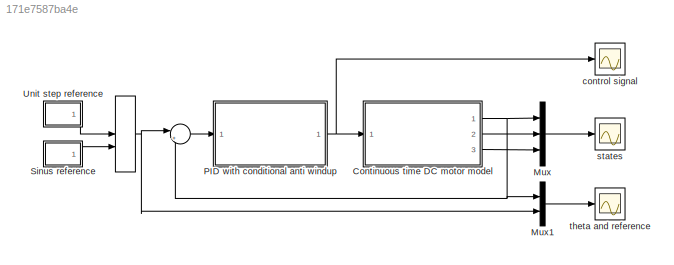
MODEL slx_171e7587ba4e
KIND model
CONFIG AbsTol = auto
CONFIG FixedStep = auto
CONFIG MaxStep = 1e-2
CONFIG MinStep = auto
CONFIG RelTol = 1e-3
CONFIG SampleTimeConstraint = Unconstrained
CONFIG Solver = VariableStepAuto
CONFIG SolverMode = Auto
CONFIG SolverName = VariableStepAuto
CONFIG StartTime = 0.0
CONFIG StopTime = 10
BLOCK [Sum]  
  IconShape = round
  InputSameDT = off
  Inputs = |+-
  OutDataTypeStr = Inherit: Inherit via internal rule
  Ports = [2, 1]
  SaturateOnIntegerOverflow = off
BLOCK [ManualSwitch]    
BLOCK [ModelReference] Continuous time DC motor model
  CopyOfModelName = DC_motor_c.slx
  ModelNameDialog = DC_motor_c.slx
  ModelReferenceVersion = 1.7
  Ports = [1, 3]
  Variant = off
BLOCK [Mux] Mux
  DisplayOption = bar
  Inputs = 3
  Ports = [3, 1]
BLOCK [Mux] Mux1
  DisplayOption = bar
  Inputs = 2
  Ports = [2, 1]
BLOCK [ModelReference] PID with conditional anti windup
  CopyOfModelName = PID_AW_c.slx
  ModelNameDialog = PID_AW_c.slx
  ModelReferenceVersion = 1.4
  Ports = [1, 1]
  Variant = off
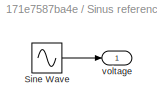
BLOCK [SubSystem] Sinus reference
  Ports = [0, 1]
  RequestExecContextInheritance = off
  Variant = off
BLOCK [Sin] Sinus reference/Sine Wave
  Frequency = 2*pi/10
  Ports = [0, 1]
  SampleTime = 0
BLOCK [Outport] Sinus reference/voltage
  IconDisplay = Port number
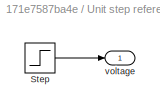
BLOCK [SubSystem] Unit step reference
  Ports = [0, 1]
  RequestExecContextInheritance = off
  Variant = off
BLOCK [Step] Unit step reference/Step
  SampleTime = 0
  Time = 0
BLOCK [Outport] Unit step reference/voltage
  IconDisplay = Port number
BLOCK [Scope] control signal
  Ports = [1]
  ScopeSpecificationString = Simulink.scopes.TimeScopeBlockCfg('CurrentConfiguration', extmgr.ConfigurationSet(extmgr.Configuration('Core','General UI',true),extmgr.Configuration('Core','Source UI',true),extmgr.Configuration('Sources','WiredSimulink',true,'DataLoggingLimitDataPoints',true,'DataLoggingSaveFormat','Array','DataLoggingDecimation','1','DataLoggingDecimateData',true,'DataLoggingVariableName','ScopeData1'),extmgr.C...<+1522ch>
BLOCK [Scope] states
  Ports = [1]
  ScopeSpecificationString = Simulink.scopes.TimeScopeBlockCfg('CurrentConfiguration', extmgr.ConfigurationSet(extmgr.Configuration('Core','General UI',true),extmgr.Configuration('Core','Source UI',true),extmgr.Configuration('Sources','WiredSimulink',true,'DataLoggingLimitDataPoints',true,'DataLoggingSaveFormat','Array','DataLoggingDecimation','1','DataLoggingDecimateData',true),extmgr.Configuration('Visuals','Time Domain',tr...<+1600ch>
BLOCK [Scope] theta and reference
  Ports = [1]
  ScopeSpecificationString = Simulink.scopes.TimeScopeBlockCfg('CurrentConfiguration', extmgr.ConfigurationSet(extmgr.Configuration('Core','General UI',true),extmgr.Configuration('Core','Source UI',true),extmgr.Configuration('Sources','WiredSimulink',true,'DataLoggingLimitDataPoints',true,'DataLoggingSaveFormat','Array','DataLoggingDecimation','1','DataLoggingDecimateData',true,'DataLoggingVariableName','ScopeData1'),extmgr.C...<+1535ch>
NET    :1 ->  :1, Mux1:2
LINE  :1 -> PID with conditional anti windup:1
NET Continuous time DC motor model:1 ->  :2, Mux1:1, Mux:1
LINE Continuous time DC motor model:2 -> Mux:2
LINE Continuous time DC motor model:3 -> Mux:3
LINE Mux1:1 -> theta and reference:1
LINE Mux:1 -> states:1
NET PID with conditional anti windup:1 -> Continuous time DC motor model:1, control signal:1
LINE Sinus reference/Sine Wave:1 -> Sinus reference/voltage:1
LINE Sinus reference:1 ->    :2
LINE Unit step reference/Step:1 -> Unit step reference/voltage:1
LINE Unit step reference:1 ->    :1
note: NET lines group one-source signal fan-out (src -> all destinations, sorted); 1:1 wires keep LINE
